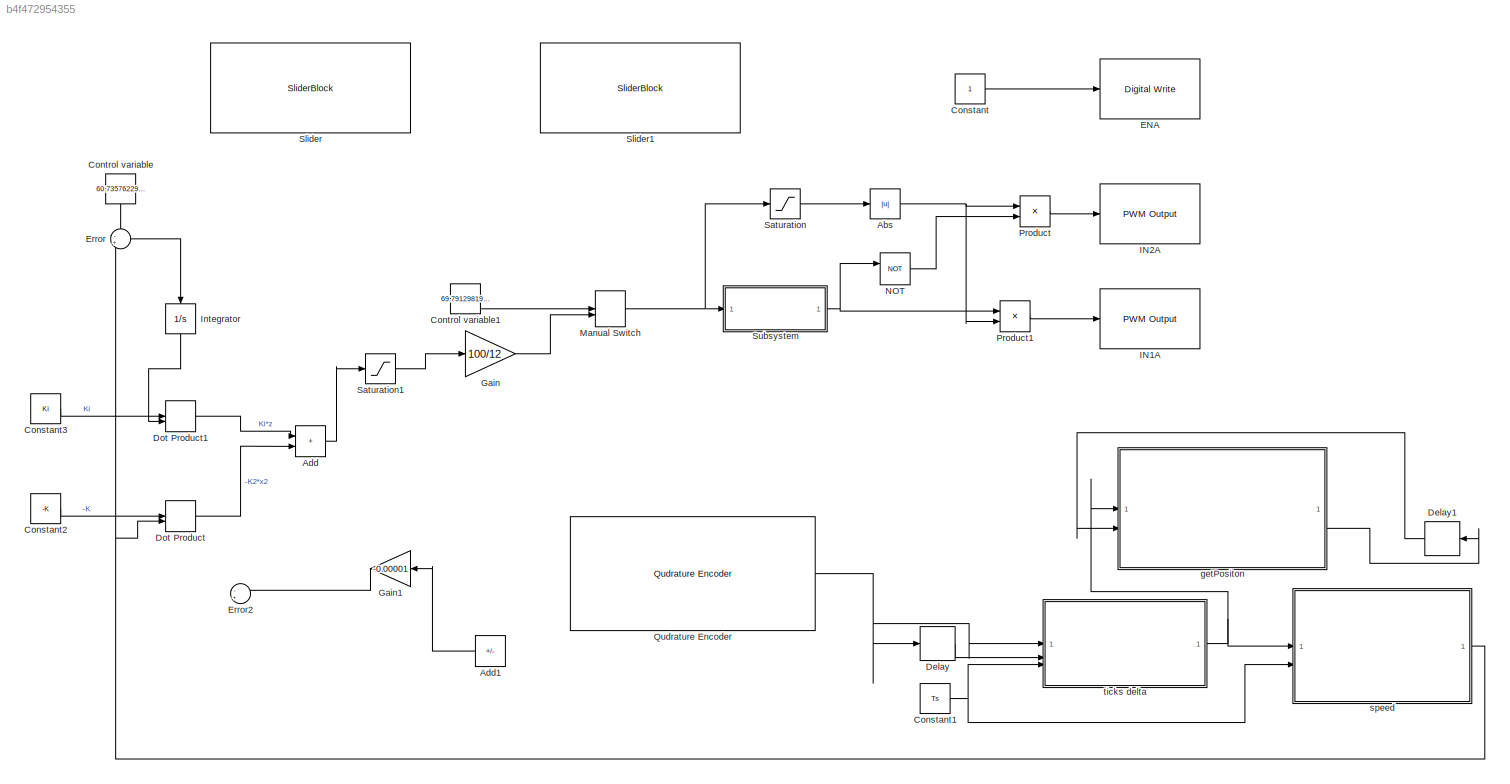
MODEL slx_b4f472954355
KIND model
CONFIG AbsTol = auto
CONFIG EnableMultiTasking = on
CONFIG FixedStep = auto
CONFIG MaxStep = auto
CONFIG MinStep = auto
CONFIG RelTol = 1e-3
CONFIG SampleTimeConstraint = Unconstrained
CONFIG SolverName = FixedStepAuto
CONFIG StartTime = 0.0
CONFIG StopTime = inf
BLOCK [Abs] Abs
  SaturateOnIntegerOverflow = off
BLOCK [Sum] Add
  IconShape = rectangular
BLOCK [Sum] Add1
  IconShape = rectangular
  Inputs = +-
  NameLocation = top
BLOCK [Constant] Constant
BLOCK [Constant] Constant1
  Value = Ts
BLOCK [Constant] Constant2
  NameLocation = top
  Value = -K
BLOCK [Constant] Constant3
  Value = Ki
BLOCK [Constant] Control variable
  NameLocation = left
  Value = 60.73576229218253
BLOCK [Constant] Control variable1
  Value = 69.79129819596744
BLOCK [Delay] Delay
  DelayLength = 1
  InputPortMap = u0
BLOCK [Delay] Delay1
  DelayLength = 1
  InitialCondition = 0
  InputPortMap = u0
  NameLocation = top
BLOCK [DotProduct] Dot Product
  NameLocation = top
  OutDataTypeStr = Inherit: Inherit via internal rule
BLOCK [DotProduct] Dot Product1
  NameLocation = top
  OutDataTypeStr = Inherit: Inherit via internal rule
BLOCK [Reference] ENA  REF=mbedblockslib/Digital Write
  LibrarySourceBlock = stmnucleorootlib/Common/Digital Write
  SourceBlock = mbedblockslib/Digital Write
  SourceType = mbed.DigitalWrite
BLOCK [Sum] Error
  Inputs = -+
BLOCK [Sum] Error2
  Inputs = -+
BLOCK [Gain] Gain
  Gain = 100/12
BLOCK [Gain] Gain1
  Gain = -0.00001
  NameLocation = top
BLOCK [Reference] IN1A  REF=mbedblockslib/PWM Output
  LibrarySourceBlock = stmnucleorootlib/Common/PWM Output
  SourceBlock = mbedblockslib/PWM Output
  SourceType = mbed.PWMOutput
BLOCK [Reference] IN2A  REF=mbedblockslib/PWM Output
  LibrarySourceBlock = stmnucleorootlib/Common/PWM Output
  SourceBlock = mbedblockslib/PWM Output
  SourceType = mbed.PWMOutput
BLOCK [Integrator] Integrator
  NameLocation = left
BLOCK [ManualSwitch] Manual Switch
  CurrentSetting = 0
BLOCK [Logic] NOT
  AllPortsSameDT = off
  IconShape = distinctive
  Operator = NOT
  OutDataTypeStr = boolean
BLOCK [Product] Product
BLOCK [Product] Product1
BLOCK [Reference] Qudrature Encoder  REF=stm_qeplib/Qudrature Encoder
  SourceBlock = stm_qeplib/Qudrature Encoder
  SourceType = soc_stm_QEP
BLOCK [Saturate] Saturation
  LowerLimit = -100
  UpperLimit = 100
BLOCK [Saturate] Saturation1
  LowerLimit = -12
  UpperLimit = 12
BLOCK [SliderBlock] Slider
  ScaleMin = -100
BLOCK [SliderBlock] Slider1
  ScaleMin = -100
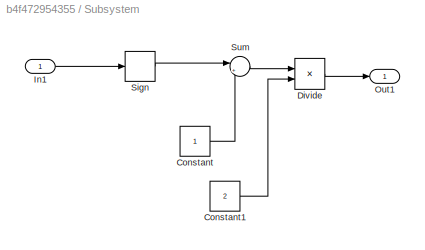
BLOCK [SubSystem] Subsystem
BLOCK [Constant] Subsystem/Constant
BLOCK [Constant] Subsystem/Constant1
  Value = 2
BLOCK [Product] Subsystem/Divide
  Inputs = */
BLOCK [Inport] Subsystem/In1
BLOCK [Outport] Subsystem/Out1
BLOCK [Signum] Subsystem/Sign
BLOCK [Sum] Subsystem/Sum
  Inputs = |++
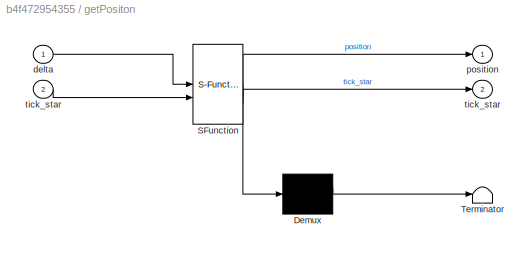
BLOCK [SubSystem] getPositon
  ErrorFcn = Stateflow.Translate.translate
  LibrarySourceBlock = simulink/User-Defined\nFunctions/MATLAB Function
  PermitHierarchicalResolution = ExplicitOnly
  SFBlockType = MATLAB Function
  TreatAsAtomicUnit = on
BLOCK [Demux] getPositon/ Demux 
  Outputs = 1
BLOCK [S-Function] getPositon/ SFunction 
  EnableBusSupport = on
  FunctionName = sf_sfun
  PortCounts = [2 3]
  SFcnIsStateOwnerBlock = off
  SFunctionDeploymentMode = off
  Tag = Stateflow S-Function 3
BLOCK [Terminator] getPositon/ Terminator 
BLOCK [Inport] getPositon/delta
BLOCK [Outport] getPositon/position
BLOCK [Outport] getPositon/tick_star
  Port = 2
BLOCK [Inport] getPositon/tick_star 
  Port = 2
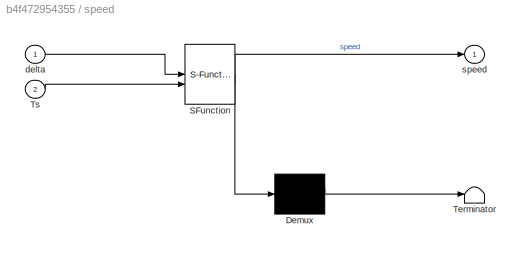
BLOCK [SubSystem] speed
  ErrorFcn = Stateflow.Translate.translate
  LibrarySourceBlock = simulink/User-Defined\nFunctions/MATLAB Function
  PermitHierarchicalResolution = ExplicitOnly
  SFBlockType = MATLAB Function
  TreatAsAtomicUnit = on
BLOCK [Demux] speed/ Demux 
  Outputs = 1
BLOCK [S-Function] speed/ SFunction 
  EnableBusSupport = on
  FunctionName = sf_sfun
  PortCounts = [2 2]
  SFcnIsStateOwnerBlock = off
  SFunctionDeploymentMode = off
  Tag = Stateflow S-Function 1
BLOCK [Terminator] speed/ Terminator 
BLOCK [Inport] speed/Ts
  Port = 2
BLOCK [Inport] speed/delta
BLOCK [Outport] speed/speed
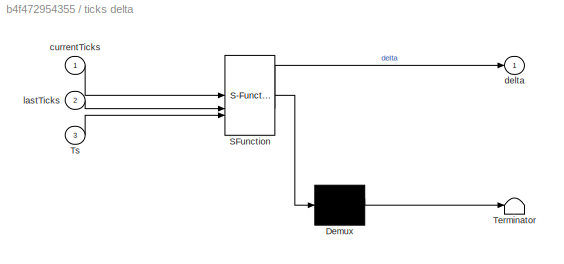
BLOCK [SubSystem] ticks delta
  ErrorFcn = Stateflow.Translate.translate
  LibrarySourceBlock = simulink/User-Defined\nFunctions/MATLAB Function
  PermitHierarchicalResolution = ExplicitOnly
  SFBlockType = MATLAB Function
  TreatAsAtomicUnit = on
BLOCK [Demux] ticks delta/ Demux 
  Outputs = 1
BLOCK [S-Function] ticks delta/ SFunction 
  EnableBusSupport = on
  FunctionName = sf_sfun
  PortCounts = [3 2]
  SFcnIsStateOwnerBlock = off
  SFunctionDeploymentMode = off
  Tag = Stateflow S-Function 2
BLOCK [Terminator] ticks delta/ Terminator 
BLOCK [Inport] ticks delta/Ts
  Port = 3
BLOCK [Inport] ticks delta/currentTicks
BLOCK [Outport] ticks delta/delta
BLOCK [Inport] ticks delta/lastTicks
  Port = 2
NET Abs:1 -> Product1:2, Product:1
LINE Add1:1 -> Gain1:1
LINE Add:1 -> Saturation1:1
NET Constant1:1 -> speed:2, ticks delta:3
LINE Constant2:1 -> Dot Product:1
LINE Constant3:1 -> Dot Product1:1
LINE Constant:1 -> ENA:1
LINE Control variable1:1 -> Manual Switch:1
LINE Control variable:1 -> Error:1
LINE Delay1:1 -> getPositon:2
LINE Delay:1 -> ticks delta:2
LINE Dot Product1:1 -> Add:1
LINE Dot Product:1 -> Add:2
LINE Error:1 -> Integrator:1
LINE Gain1:1 -> Error2:1
LINE Gain:1 -> Manual Switch:2
LINE Integrator:1 -> Dot Product1:2
NET Manual Switch:1 -> Saturation:1, Subsystem:1
LINE NOT:1 -> Product:2
LINE Product1:1 -> IN1A:1
LINE Product:1 -> IN2A:1
NET Qudrature Encoder:1 -> Delay:1, ticks delta:1
LINE Saturation1:1 -> Gain:1
LINE Saturation:1 -> Abs:1
LINE Subsystem/Constant1:1 -> Subsystem/Divide:2
LINE Subsystem/Constant:1 -> Subsystem/Sum:2
LINE Subsystem/Divide:1 -> Subsystem/Out1:1
LINE Subsystem/In1:1 -> Subsystem/Sign:1
LINE Subsystem/Sign:1 -> Subsystem/Sum:1
LINE Subsystem/Sum:1 -> Subsystem/Divide:1
NET Subsystem:1 -> NOT:1, Product1:1
LINE getPositon:2 -> Delay1:1
NET speed:1 -> Dot Product:2, Error:2
NET ticks delta:1 -> getPositon:1, speed:1
note: NET lines group one-source signal fan-out (src -> all destinations, sorted); 1:1 wires keep LINE
CHART ticks delta states=1 transitions=1
  STATE_LABEL 'eML_blk_kernel()'
  STATE_LABEL 'SCRIPT:\nfunction delta = getTicksData(currentTicks, lastTicks, Ts)\n\ncurrentTicks = double(currentTicks);\nlastTicks = double(lastTicks);\n\nif abs(currentTicks - lastTicks) <= ceil(12600*Ts)\n    delta = currentTicks - lastTicks;\nelse\n    if lastTicks > currentTicks\n        delta = currentTicks + 2^16-1 - lastTicks;\n    else\n        delta = currentTicks - 2^16+1 - lastTicks;\n    end\nend\n\nend\n'
CHART getPositon states=1 transitions=1
  STATE_LABEL 'eML_blk_kernel()'
  STATE_LABEL 'SCRIPT:\nfunction [position, tick_star] = getPosition(delta, tick_star)\n\ntick_star = double(tick_star + delta);\n\ncompleteTheta = 2 * pi * tick_star /(8400);\n\nposition = sign(completeTheta) * mod(abs(completeTheta), 2*pi);\n\nend\n'
CHART speed states=1 transitions=1
  STATE_LABEL 'eML_blk_kernel()'
  STATE_LABEL 'SCRIPT:\nfunction speed = getSpeedByDelta(delta, Ts)\n\nspeed = delta * 60 / (8400*Ts);\n\nend\n'
CHART  states=0 transitions=0
CHART  states=0 transitions=0
CHART  states=0 transitions=0
